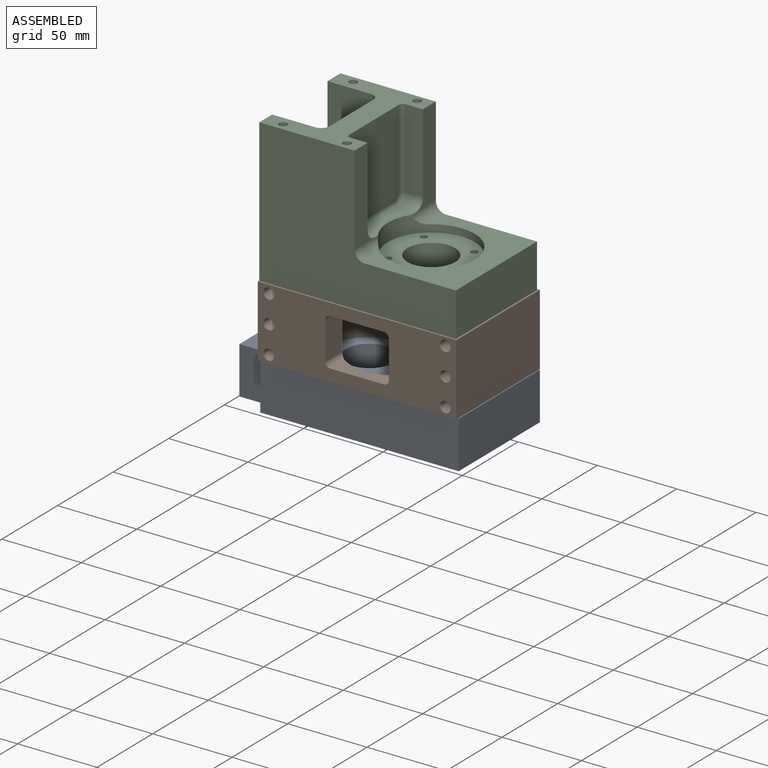
[diagram: assembled view]
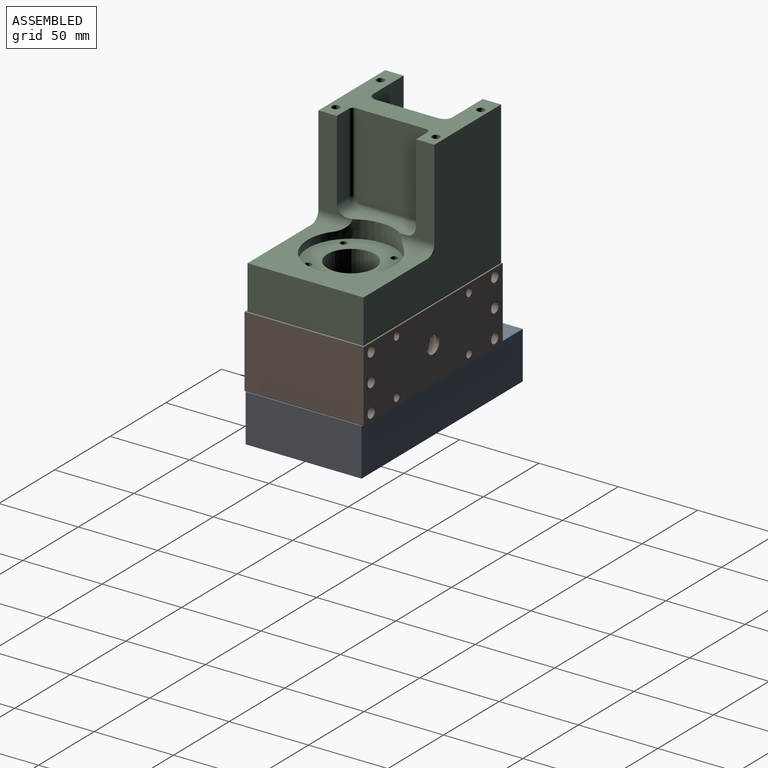
[diagram: assembled view, second angle]
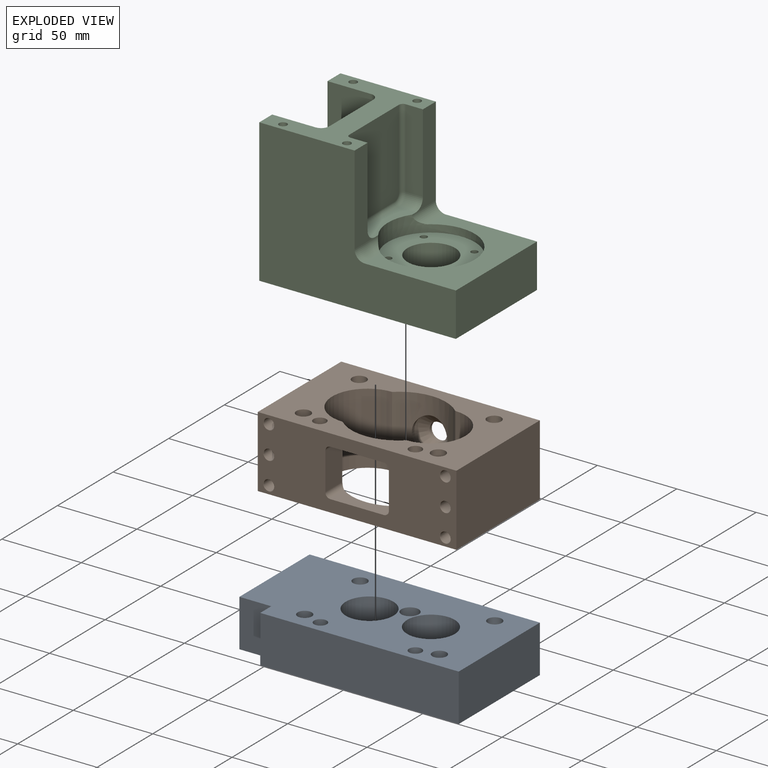
[diagram: exploded view]
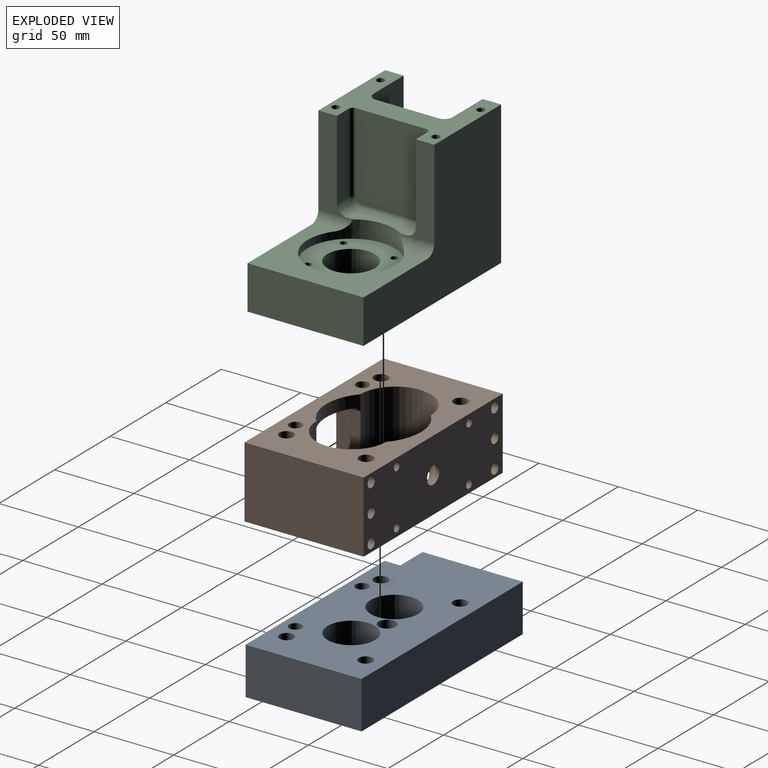
[diagram: exploded view, second angle]
ASSEMBLY  parts=3 mates=2
PART A: 39 faces, bbox 145x29.8x73 mm
  f0: plane 124.97x29.85mm, normal (0,0,-1), area 3729.7mm2, adj f1,f5,f6,f7
  f1: plane 29.85x9.91mm, normal (1,0,0), area 295.6mm2, adj f0,f2,f6,f7
  f2: plane 29.85x20.07mm, normal (0,0,-1), area 598.9mm2, adj f1,f3,f6,f7
  f3: plane 63.12x29.85mm, normal (1,0,0), area 1780.6mm2, adj f2,f4,f6,f7,f33,f34
  f4: plane 145.03x29.85mm, normal (0,0,1), area 4328.5mm2, adj f3,f5,f6,f7
  f5: plane 73.03x29.85mm, normal (-1,0,0), area 2179.4mm2, adj f0,f4,f6,f7
  f6: plane 145.03x73.03mm, normal (0,-1,0), area 10035.2mm2, adj f0,f1,f2,f3,f4,f5,f12,f14
  f7: plane 145.03x73.03mm, normal (0,1,0), area 8526.3mm2, adj f0,f1,f2,f3,f4,f5,f13,f15
  f8: cylinder r=4.45mm len=29.74mm, axis (0,1,0), area 830.7mm2, adj f18,f19
  f9: cylinder r=4.45mm len=29.74mm, axis (0,1,0), area 830.7mm2, adj f16,f17
  f10: cylinder r=4.45mm len=29.74mm, axis (0,1,0), area 830.7mm2, adj f14,f15
  f11: cylinder r=4.45mm len=29.74mm, axis (0,1,0), area 830.7mm2, adj f12,f13
  f12: torus R=4.5mm, axis (0,-1,0), area 2.2mm2, adj f6,f11
  f13: torus R=4.5mm, axis (0,-1,0), area 2.2mm2, adj f7,f11
  f14: torus R=4.5mm, axis (0,-1,0), area 2.2mm2, adj f6,f10
  f15: torus R=4.5mm, axis (0,-1,0), area 2.2mm2, adj f7,f10
  f16: torus R=4.5mm, axis (0,-1,0), area 2.2mm2, adj f6,f9
  f17: torus R=4.5mm, axis (0,-1,0), area 2.2mm2, adj f7,f9
  f18: torus R=4.5mm, axis (0,-1,0), area 2.2mm2, adj f6,f8
  f19: torus R=4.5mm, axis (0,-1,0), area 2.2mm2, adj f7,f8
  f20: cylinder r=4mm len=29.74mm, axis (0,1,0), area 747.6mm2, adj f24,f25
  f21: cylinder r=4mm len=29.74mm, axis (0,1,0), area 747.6mm2, adj f22,f23
  f22: torus R=4.05mm, axis (0,-1,0), area 2mm2, adj f6,f21
  f23: torus R=4.05mm, axis (0,-1,0), area 2mm2, adj f7,f21
  f24: torus R=4.05mm, axis (0,-1,0), area 2mm2, adj f6,f20
  f25: torus R=4.05mm, axis (0,-1,0), area 2mm2, adj f7,f20
  f26: cylinder r=5.46mm len=10.92mm, axis (0,1,0), area 198.7mm2, adj f27,f28
  f27: cone r=0mm half-angle=59deg, axis (0,1,0), area 109.3mm2, adj f26
  f28: torus R=5.51mm, axis (0,-1,0), area 2.7mm2, adj f7,f26
  f29: cylinder r=5.08mm len=43.13mm, axis (1,0,0), area 1376.6mm2, adj f30,f34
  f30: cone r=0mm half-angle=59deg, axis (1,0,0), area 94.6mm2, adj f29
  f31: cylinder r=2.5mm len=25.95mm, axis (1,0,0), area 407.6mm2, adj f32,f33
  f32: cone r=0mm half-angle=59deg, axis (1,0,0), area 22.9mm2, adj f31
  f33: torus R=2.55mm, axis (1,0,0), area 1.3mm2, adj f3,f31
  f34: torus R=5.13mm, axis (1,0,0), area 2.6mm2, adj f3,f29
  f35: cylinder r=15mm len=30mm, axis (0,1,0), area 1962.8mm2, adj f7,f36
  f36: plane 30x30mm, normal (0,1,0), area 706.7mm2, adj f35
  f37: cylinder r=15mm len=30mm, axis (0,1,0), area 1962.8mm2, adj f7,f38
  f38: plane 30x30mm, normal (0,1,0), area 706.7mm2, adj f37
PART B: 58 faces, bbox 125.1x45x75.1 mm
  f0: cylinder r=29.58mm len=45.01mm, axis (0,-1,0), area 1575.7mm2, adj f5,f6,f7,f9,f19,f20
  f1: plane 75.06x45.01mm, normal (-1,0,0), area 3378.2mm2, adj f2,f4,f5,f6
  f2: plane 125.1x45.01mm, normal (0,0,-1), area 5227.2mm2, adj f1,f3,f5,f6,f18,f34,f35,f36
  f3: plane 75.06x45.01mm, normal (1,0,0), area 3378.2mm2, adj f2,f4,f5,f6
  f4: plane 125.1x45.01mm, normal (0,0,1), area 4223.7mm2, adj f1,f3,f5,f6,f10,f11,f12,f13
  f5: plane 125.1x75.06mm, normal (0,-1,0), area 5318.7mm2, adj f0,f1,f2,f3,f4,f7,f8,f9
  f6: plane 125.1x75.06mm, normal (0,1,0), area 5318.7mm2, adj f0,f1,f2,f3,f4,f7,f8,f9
  f7: cylinder r=21.95mm len=45.01mm, axis (0,-1,0), area 3091.6mm2, adj f0,f5,f6,f8
  f8: cylinder r=29.58mm len=45.01mm, axis (0,-1,0), area 682.1mm2, adj f5,f6,f7,f9,f10,f11,f12,f13
  f9: cylinder r=22.29mm len=45.01mm, axis (0,-1,0), area 3133.9mm2, adj f0,f5,f6,f8,f15,f16,f17
  f10: plane 33.66x12.91mm, normal (0,1,0), area 313.1mm2, adj f4,f8,f11,f15
  f11: cylinder r=3.17mm len=15.45mm, axis (0,0,1), area 72.2mm2, adj f4,f8,f10,f12
  f12: plane 23.5x15.45mm, normal (-1,0,0), area 363.1mm2, adj f4,f8,f11,f13
  f13: cylinder r=3.17mm len=15.45mm, axis (0,0,1), area 72.2mm2, adj f4,f8,f12,f14
  f14: plane 33.66x12.91mm, normal (0,-1,0), area 313.1mm2, adj f4,f8,f13,f16
  f15: cylinder r=3.17mm len=15.24mm, axis (0,0,1), area 71.7mm2, adj f4,f8,f9,f10,f17
  f16: cylinder r=3.17mm len=15.24mm, axis (0,0,1), area 71.7mm2, adj f4,f8,f9,f14,f17
  f17: plane 23.5x15.24mm, normal (1,0,0), area 358.1mm2, adj f4,f9,f15,f16
  f18: cylinder r=5.5mm len=11mm, axis (0,0,1), area 66.4mm2, adj f2,f21
  f19: cylinder r=11.2mm len=22.4mm, axis (0,0,1), area 38.4mm2, adj f0,f21
  f20: cylinder r=11.2mm len=22.4mm, axis (0,0,1), area 38.4mm2, adj f0,f21
  f21: cone r=5.5mm half-angle=45deg, axis (0,0,1), area 422.9mm2, adj f18,f19,f20
  f22: cylinder r=3.3mm len=74.8mm, axis (0,0,1), area 1551mm2, adj f33,f37
  f23: cylinder r=3.3mm len=74.8mm, axis (0,0,1), area 1551mm2, adj f32,f38
  f24: cylinder r=3.3mm len=74.8mm, axis (0,0,1), area 1551mm2, adj f31,f39
  f25: cylinder r=3.3mm len=74.8mm, axis (0,0,1), area 1551mm2, adj f30,f34
  f26: cylinder r=3.3mm len=74.8mm, axis (0,0,1), area 1551mm2, adj f29,f35
  f27: cylinder r=3.3mm len=74.8mm, axis (0,0,1), area 1551mm2, adj f28,f36
  f28: cone r=3.3mm half-angle=45deg, axis (0,0,1), area 3.8mm2, adj f4,f27
  f29: cone r=3.3mm half-angle=45deg, axis (0,0,1), area 3.8mm2, adj f4,f26
  f30: cone r=3.3mm half-angle=45deg, axis (0,0,1), area 3.8mm2, adj f4,f25
  f31: cone r=3.3mm half-angle=45deg, axis (0,0,1), area 3.8mm2, adj f4,f24
  f32: cone r=3.3mm half-angle=45deg, axis (0,0,1), area 3.8mm2, adj f4,f23
  f33: cone r=3.3mm half-angle=45deg, axis (0,0,1), area 3.8mm2, adj f4,f22
  f34: cone r=3.3mm half-angle=45deg, axis (0,0,-1), area 3.8mm2, adj f2,f25
  f35: cone r=3.3mm half-angle=45deg, axis (0,0,-1), area 3.8mm2, adj f2,f26
  f36: cone r=3.3mm half-angle=45deg, axis (0,0,-1), area 3.8mm2, adj f2,f27
  f37: cone r=3.3mm half-angle=45deg, axis (0,0,-1), area 3.8mm2, adj f2,f22
  f38: cone r=3.3mm half-angle=45deg, axis (0,0,-1), area 3.8mm2, adj f2,f23
  f39: cone r=3.3mm half-angle=45deg, axis (0,0,-1), area 3.8mm2, adj f2,f24
  f40: cylinder r=2.5mm len=16.38mm, axis (0,0,-1), area 257.3mm2, adj f41,f51
  f41: cone r=0mm half-angle=59deg, axis (0,0,-1), area 22.9mm2, adj f40
  f42: cylinder r=2.5mm len=16.38mm, axis (0,0,-1), area 257.3mm2, adj f43,f50
  f43: cone r=0mm half-angle=59deg, axis (0,0,-1), area 22.9mm2, adj f42
  f44: cylinder r=2.5mm len=16.38mm, axis (0,0,-1), area 257.3mm2, adj f45,f48
  f45: cone r=0mm half-angle=59deg, axis (0,0,-1), area 22.9mm2, adj f44
  f46: cylinder r=2.5mm len=16.38mm, axis (0,0,-1), area 257.3mm2, adj f47,f49
  f47: cone r=0mm half-angle=59deg, axis (0,0,-1), area 22.9mm2, adj f46
  f48: cone r=2.5mm half-angle=45deg, axis (0,0,-1), area 2.9mm2, adj f2,f44
  f49: cone r=2.5mm half-angle=45deg, axis (0,0,-1), area 2.9mm2, adj f2,f46
  f50: cone r=2.5mm half-angle=45deg, axis (0,0,-1), area 2.9mm2, adj f2,f42
  f51: cone r=2.5mm half-angle=45deg, axis (0,0,-1), area 2.9mm2, adj f2,f40
  f52: cylinder r=4.45mm len=45.01mm, axis (0,-1,0), area 1257mm2, adj f5,f6
  f53: cylinder r=4.45mm len=45.01mm, axis (0,-1,0), area 1257mm2, adj f5,f6
  f54: cylinder r=4.45mm len=45.01mm, axis (0,-1,0), area 1257mm2, adj f5,f6
  f55: cylinder r=4.45mm len=45.01mm, axis (0,-1,0), area 1257mm2, adj f5,f6
  f56: cylinder r=4mm len=45.01mm, axis (0,-1,0), area 1131.3mm2, adj f5,f6
  f57: cylinder r=4mm len=45.01mm, axis (0,-1,0), area 1131.3mm2, adj f5,f6
PART C: 75 faces, bbox 123.8x73x90.2 mm
  f0: cylinder r=6.35mm len=21.16mm, axis (0,-1,0), area 183.8mm2, adj f4,f8,f10,f19,f23,f24
  f1: cylinder r=6.35mm len=21.16mm, axis (0,-1,0), area 183.8mm2, adj f3,f6,f10,f19,f23
  f2: plane 73.03x60.07mm, normal (0,0,1), area 2045.9mm2, adj f3,f4,f5,f6,f8,f11,f15,f16
  f3: plane 56.26x17.97mm, normal (1,0,0), area 662.4mm2, adj f1,f2,f6,f17,f18
  f4: plane 56.26x17.97mm, normal (1,0,0), area 662.4mm2, adj f0,f2,f8,f20,f21
  f5: plane 90.17x73.03mm, normal (-1,0,0), area 3377.5mm2, adj f2,f6,f8,f9,f11,f12,f13,f14
  f6: plane 123.83x90.17mm, normal (0,-1,0), area 7182.3mm2, adj f1,f2,f3,f5,f7,f9,f10
  f7: plane 73.03x27.56mm, normal (1,0,0), area 2012.5mm2, adj f6,f8,f9,f10
  f8: plane 123.83x90.17mm, normal (0,1,0), area 7182.3mm2, adj f0,f2,f4,f5,f7,f9,f10
  f9: plane 123.83x73.03mm, normal (0,0,-1), area 7282.8mm2, adj f5,f6,f7,f8,f32,f60,f62,f64
  f10: plane 73.03x68.45mm, normal (0,0,1), area 2167.9mm2, adj f0,f1,f6,f7,f8,f23,f25
  f11: plane 58.42x27.31mm, normal (0,-1,0), area 1595.2mm2, adj f2,f5,f12,f58
  f12: cylinder r=6.35mm len=27.31mm, axis (-1,0,0), area 272.4mm2, adj f5,f11,f13,f57
  f13: plane 37.08x27.31mm, normal (0,0,1), area 1012.6mm2, adj f5,f12,f14,f56
  f14: cylinder r=6.35mm len=27.31mm, axis (-1,0,0), area 272.4mm2, adj f5,f13,f15,f55
  f15: plane 58.42x27.31mm, normal (0,1,0), area 1595.2mm2, adj f2,f5,f14,f54
  f16: plane 59.69x39.62mm, normal (-1,0,0), area 2364.5mm2, adj f2,f54,f55,f56,f57,f58
  f17: plane 49.91x10.8mm, normal (0,1,0), area 538.8mm2, adj f2,f3,f18,f27
  f18: cylinder r=6.35mm len=10.8mm, axis (1,0,0), area 107.7mm2, adj f3,f17,f19,f28
  f19: plane 37.08x10.8mm, normal (0,0,1), area 302.3mm2, adj f0,f1,f18,f20,f23,f29
  f20: cylinder r=6.35mm len=10.8mm, axis (1,0,0), area 107.7mm2, adj f4,f19,f21,f30
  f21: plane 49.91x10.8mm, normal (0,-1,0), area 538.8mm2, adj f2,f4,f20,f31
  f22: plane 53.72x44.7mm, normal (1,0,0), area 2395.3mm2, adj f2,f27,f28,f29,f30,f31
  f23: cylinder r=27.43mm len=44.01mm, axis (0,0,-1), area 234.8mm2, adj f0,f1,f10,f19,f24
  f24: plane 22.01x11.05mm, normal (0,0,-1), area 0.1mm2, adj f0,f23,f25
  f25: cylinder r=27.43mm len=54.86mm, axis (0,0,1), area 809.9mm2, adj f10,f24,f26
  f26: plane 54.86x54.86mm, normal (0,0,1), area 1594.4mm2, adj f25,f41,f42,f43,f44,f45
  f27: cylinder r=2.54mm len=49.91mm, axis (0,0,-1), area 199.1mm2, adj f2,f17,f22,f28
  f28: torus R=3.81mm, axis (1,0,0), area 34mm2, adj f18,f22,f27,f29
  f29: cylinder r=2.54mm len=37.08mm, axis (0,1,0), area 148mm2, adj f19,f22,f28,f30
  f30: torus R=3.81mm, axis (1,0,0), area 34mm2, adj f20,f22,f29,f31
  f31: cylinder r=2.54mm len=49.91mm, axis (0,0,1), area 199.1mm2, adj f2,f21,f22,f30
  f32: cylinder r=15mm len=30mm, axis (0,0,1), area 2149.5mm2, adj f9,f41
  f33: cone r=0mm half-angle=59deg, axis (0,0,1), area 16.2mm2, adj f34
  f34: cylinder r=2.1mm len=17.73mm, axis (0,0,1), area 233.9mm2, adj f33,f45
  f35: cone r=0mm half-angle=59deg, axis (0,0,1), area 16.2mm2, adj f36
  f36: cylinder r=2.1mm len=17.73mm, axis (0,0,1), area 233.9mm2, adj f35,f44
  f37: cone r=0mm half-angle=59deg, axis (0,0,1), area 16.2mm2, adj f38
  f38: cylinder r=2.1mm len=17.73mm, axis (0,0,1), area 233.9mm2, adj f37,f43
  f39: cone r=0mm half-angle=59deg, axis (0,0,1), area 16.2mm2, adj f40
  f40: cylinder r=2.1mm len=17.73mm, axis (0,0,1), area 233.9mm2, adj f39,f42
  f41: cone r=15mm half-angle=45deg, axis (0,0,1), area 6.8mm2, adj f26,f32
  f42: cone r=2.1mm half-angle=45deg, axis (0,0,1), area 1mm2, adj f26,f40
  f43: cone r=2.1mm half-angle=45deg, axis (0,0,1), area 1mm2, adj f26,f38
  f44: cone r=2.1mm half-angle=45deg, axis (0,0,1), area 1mm2, adj f26,f36
  f45: cone r=2.1mm half-angle=45deg, axis (0,0,1), area 1mm2, adj f26,f34
  f46: cone r=0mm half-angle=59deg, axis (0,0,1), area 22.9mm2, adj f47
  f47: cylinder r=2.5mm len=18.38mm, axis (0,0,1), area 288.7mm2, adj f2,f46
  f48: cone r=0mm half-angle=59deg, axis (0,0,1), area 22.9mm2, adj f49
  f49: cylinder r=2.5mm len=18.38mm, axis (0,0,1), area 288.7mm2, adj f2,f48
  f50: cone r=0mm half-angle=59deg, axis (0,0,1), area 22.9mm2, adj f51
  f51: cylinder r=2.5mm len=18.38mm, axis (0,0,1), area 288.7mm2, adj f2,f50
  f52: cone r=0mm half-angle=59deg, axis (0,0,1), area 22.9mm2, adj f53
  f53: cylinder r=2.5mm len=18.38mm, axis (0,0,1), area 288.7mm2, adj f2,f52
  f54: cylinder r=5.08mm len=58.42mm, axis (0,0,1), area 466.2mm2, adj f2,f15,f16,f55
  f55: torus R=1.27mm, axis (-1,0,0), area 56.5mm2, adj f14,f16,f54,f56
  f56: cylinder r=5.08mm len=37.08mm, axis (0,-1,0), area 295.9mm2, adj f13,f16,f55,f57
  f57: torus R=1.27mm, axis (-1,0,0), area 56.5mm2, adj f12,f16,f56,f58
  f58: cylinder r=5.08mm len=58.42mm, axis (0,0,-1), area 466.2mm2, adj f2,f11,f16,f57
  f59: cone r=0mm half-angle=59deg, axis (0,0,-1), area 44.9mm2, adj f60
  f60: cylinder r=3.5mm len=25.4mm, axis (0,0,-1), area 558.6mm2, adj f9,f59
  f61: cone r=0mm half-angle=59deg, axis (0,0,-1), area 44.9mm2, adj f62
  f62: cylinder r=3.5mm len=25.4mm, axis (0,0,-1), area 558.6mm2, adj f9,f61
  f63: cone r=0mm half-angle=59deg, axis (0,0,-1), area 44.9mm2, adj f64
  f64: cylinder r=3.5mm len=25.4mm, axis (0,0,-1), area 558.6mm2, adj f9,f63
  f65: cone r=0mm half-angle=59deg, axis (0,0,-1), area 44.9mm2, adj f66
  f66: cylinder r=3.5mm len=25.4mm, axis (0,0,-1), area 558.6mm2, adj f9,f65
  f67: cone r=0mm half-angle=59deg, axis (0,0,-1), area 58.7mm2, adj f68
  f68: cylinder r=4mm len=20.32mm, axis (0,0,-1), area 510.8mm2, adj f9,f67
  f69: cone r=0mm half-angle=59deg, axis (0,0,-1), area 58.7mm2, adj f70
  f70: cylinder r=4mm len=20.32mm, axis (0,0,-1), area 510.8mm2, adj f9,f69
  f71: cylinder r=15mm len=30mm, axis (0,0,-1), area 1950.9mm2, adj f9,f72
  f72: plane 30x30mm, normal (0,0,-1), area 706.7mm2, adj f71
  f73: cone r=0mm half-angle=59deg, axis (0,0,-1), area 106.8mm2, adj f74
  f74: cylinder r=5.4mm len=10.8mm, axis (0,0,-1), area 159.4mm2, adj f9,f73
PLACE A rot(axis=(0,0.71,0.71),180deg) t=(-241.97,44.16,-71.13)mm
PLACE B rot(axis=(1,0,0),90deg) t=(-186.37,80.54,-26.12)mm
PLACE C rot(axis=(0,0,-1),0deg) t=(-157.31,44.14,-26.12)mm
MATE pin_slot C.f69 <-> B.f57  axis (0,0,-1) through (-156.27,52.47,-26.12)mm
MATE pin_slot A.f21 <-> B.f57  axis (0,0,1) through (-156.27,52.47,-71.13)mm
